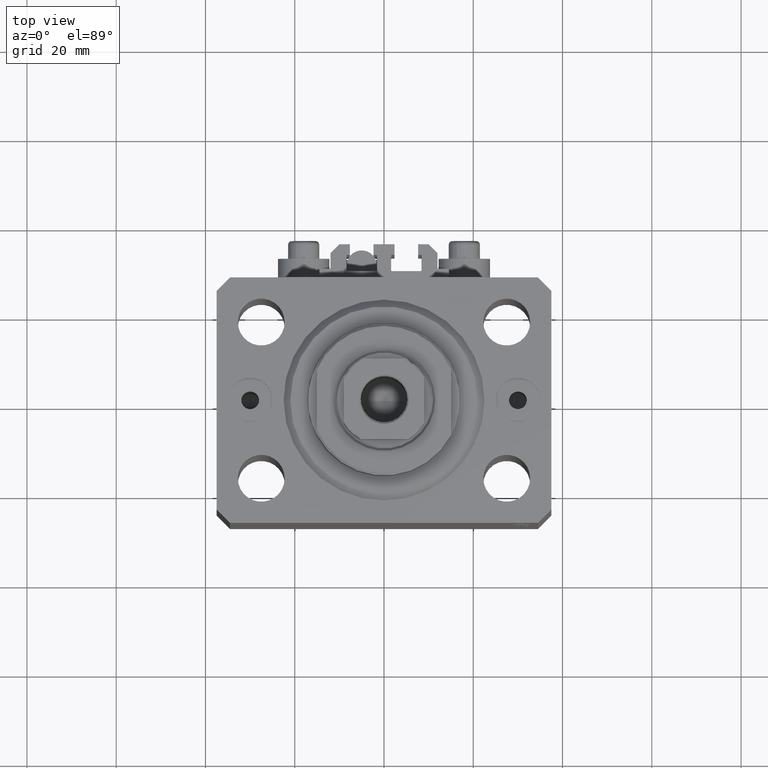
[diagram: clean part render]
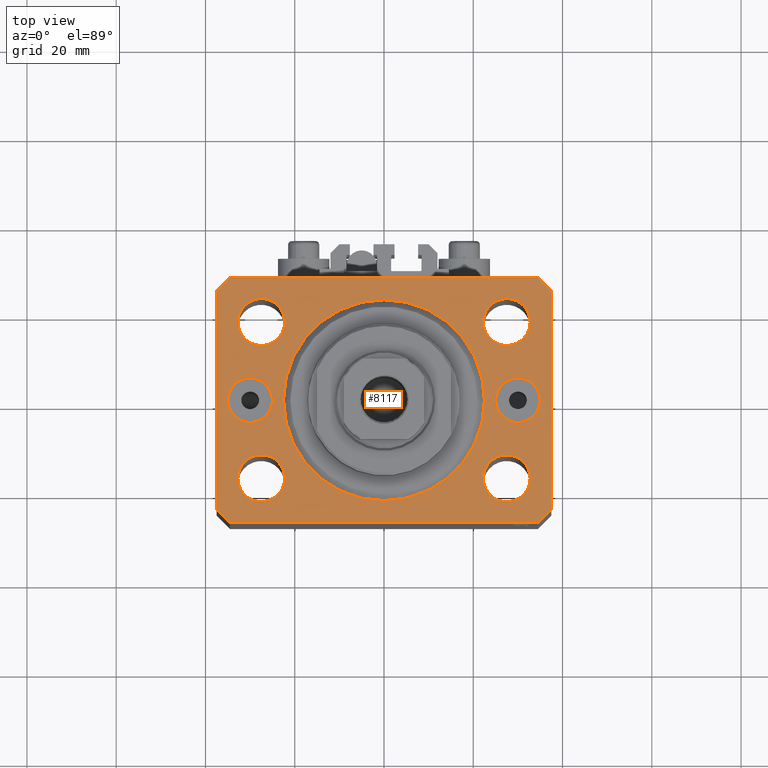
[diagram: same view with one face highlighted and labeled with its STEP entity id]
A machine part, top view. The second image highlights one B-rep face of the part: STEP entity #8117.
In plain terms, the highlighted planar face has unit normal (0, 0, 1).
Its self-contained STEP definition (entity closure, byte-faithful):
#1018 = DIRECTION ( 'NONE',  ( 0.000000000000000000, 0.000000000000000000, 1.000000000000000000 ) ) ;
#1151 = VERTEX_POINT ( 'NONE', #2017 ) ;
#1253 = CIRCLE ( 'NONE', #11327, 5.250000000000000888 ) ;
#1261 = CARTESIAN_POINT ( 'NONE',  ( -22.25000000000000000, 17.49999999999999645, 0.000000000000000000 ) ) ;
#1316 = DIRECTION ( 'NONE',  ( 0.000000000000000000, -1.000000000000000000, 0.000000000000000000 ) ) ;
#1360 = EDGE_CURVE ( 'NONE', #44232, #16365, #42494, .T. ) ;
#1390 = CARTESIAN_POINT ( 'NONE',  ( -30.00000000000000000, 0.000000000000000000, 0.000000000000000000 ) ) ;
#1497 = FACE_BOUND ( 'NONE', #9825, .T. ) ;
#1715 = VERTEX_POINT ( 'NONE', #29614 ) ;
#1829 = VERTEX_POINT ( 'NONE', #28067 ) ;
#2017 = CARTESIAN_POINT ( 'NONE',  ( -34.49999999999999289, 27.50000000000000000, 0.000000000000000000 ) ) ;
#2190 = EDGE_CURVE ( 'NONE', #31618, #15396, #40081, .T. ) ;
#2365 = EDGE_CURVE ( 'NONE', #13115, #27090, #9060, .T. ) ;
#2415 = CIRCLE ( 'NONE', #26477, 5.250000000000000888 ) ;
#2418 = LINE ( 'NONE', #41365, #34063 ) ;
#2650 = ORIENTED_EDGE ( 'NONE', *, *, #42698, .F. ) ;
#2874 = AXIS2_PLACEMENT_3D ( 'NONE', #26602, #30248, #4975 ) ;
#2918 = AXIS2_PLACEMENT_3D ( 'NONE', #8627, #45778, #23431 ) ;
#3124 = DIRECTION ( 'NONE',  ( 1.000000000000000000, 0.000000000000000000, 0.000000000000000000 ) ) ;
#3290 = CARTESIAN_POINT ( 'NONE',  ( 37.49999999999999289, -24.50000000000000000, 0.000000000000000000 ) ) ;
#3697 = DIRECTION ( 'NONE',  ( 0.000000000000000000, -0.000000000000000000, -1.000000000000000000 ) ) ;
#3773 = ORIENTED_EDGE ( 'NONE', *, *, #24108, .F. ) ;
#4400 = DIRECTION ( 'NONE',  ( 1.000000000000000000, 0.000000000000000000, 0.000000000000000000 ) ) ;
#4975 = DIRECTION ( 'NONE',  ( 1.000000000000000000, 0.000000000000000000, 0.000000000000000000 ) ) ;
#5382 = VECTOR ( 'NONE', #1316, 1000.000000000000000 ) ;
#5531 = ORIENTED_EDGE ( 'NONE', *, *, #11553, .T. ) ;
#5606 = CARTESIAN_POINT ( 'NONE',  ( 0.000000000000000000, 0.000000000000000000, 0.000000000000000000 ) ) ;
#5679 = EDGE_LOOP ( 'NONE', ( #12048, #39023 ) ) ;
#5950 = DIRECTION ( 'NONE',  ( 1.000000000000000000, 0.000000000000000000, 0.000000000000000000 ) ) ;
#6087 = CIRCLE ( 'NONE', #16172, 5.250000000000000888 ) ;
#6188 = EDGE_LOOP ( 'NONE', ( #12502, #10567 ) ) ;
#6741 = AXIS2_PLACEMENT_3D ( 'NONE', #10975, #3697, #25301 ) ;
#7135 = DIRECTION ( 'NONE',  ( 1.000000000000000000, 0.000000000000000000, 0.000000000000000000 ) ) ;
#7216 = EDGE_CURVE ( 'NONE', #1151, #16637, #2418, .T. ) ;
#8054 = DIRECTION ( 'NONE',  ( 0.000000000000000000, 0.000000000000000000, 1.000000000000000000 ) ) ;
#8076 = CARTESIAN_POINT ( 'NONE',  ( 30.00000000000000000, 0.000000000000000000, 0.000000000000000000 ) ) ;
#8117 = ADVANCED_FACE ( 'NONE', ( #34284, #46156, #34754, #45918, #1497, #31594, #8999, #45444 ), #16290, .T. ) ;
#8313 = AXIS2_PLACEMENT_3D ( 'NONE', #14277, #10881, #3124 ) ;
#8373 = DIRECTION ( 'NONE',  ( -0.7071067811865364705, 0.7071067811865584529, 0.000000000000000000 ) ) ;
#8581 = VECTOR ( 'NONE', #5950, 1000.000000000000000 ) ;
#8627 = CARTESIAN_POINT ( 'NONE',  ( 0.000000000000000000, 0.000000000000000000, 0.000000000000000000 ) ) ;
#8999 = FACE_BOUND ( 'NONE', #35820, .T. ) ;
#9060 = CIRCLE ( 'NONE', #8313, 5.250000000000000888 ) ;
#9262 = CIRCLE ( 'NONE', #21673, 5.250000000000000888 ) ;
#9783 = EDGE_CURVE ( 'NONE', #20453, #42626, #41650, .T. ) ;
#9817 = EDGE_LOOP ( 'NONE', ( #41083, #18112, #39669, #10087, #5531, #34438, #31589, #47970 ) ) ;
#9825 = EDGE_LOOP ( 'NONE', ( #22482, #15714 ) ) ;
#10023 = CARTESIAN_POINT ( 'NONE',  ( -22.24999999999999289, -17.50000000000000000, 0.000000000000000000 ) ) ;
#10087 = ORIENTED_EDGE ( 'NONE', *, *, #43009, .T. ) ;
#10567 = ORIENTED_EDGE ( 'NONE', *, *, #38109, .F. ) ;
#10881 = DIRECTION ( 'NONE',  ( 0.000000000000000000, 0.000000000000000000, 1.000000000000000000 ) ) ;
#10975 = CARTESIAN_POINT ( 'NONE',  ( 30.00000000000000000, 0.000000000000000000, 0.000000000000000000 ) ) ;
#11327 = AXIS2_PLACEMENT_3D ( 'NONE', #42390, #23930, #24179 ) ;
#11553 = EDGE_CURVE ( 'NONE', #39510, #39441, #13237, .T. ) ;
#11693 = CARTESIAN_POINT ( 'NONE',  ( 27.49999999999999289, -17.50000000000000000, 0.000000000000000000 ) ) ;
#11703 = CARTESIAN_POINT ( 'NONE',  ( -27.49999999999999289, -17.50000000000000000, 0.000000000000000000 ) ) ;
#12048 = ORIENTED_EDGE ( 'NONE', *, *, #1360, .F. ) ;
#12502 = ORIENTED_EDGE ( 'NONE', *, *, #43344, .F. ) ;
#12696 = EDGE_CURVE ( 'NONE', #47940, #30995, #2415, .T. ) ;
#12711 = DIRECTION ( 'NONE',  ( 1.000000000000000000, 0.000000000000000000, 0.000000000000000000 ) ) ;
#13115 = VERTEX_POINT ( 'NONE', #1261 ) ;
#13237 = LINE ( 'NONE', #28064, #8581 ) ;
#13371 = EDGE_CURVE ( 'NONE', #39441, #31445, #16005, .T. ) ;
#14214 = CARTESIAN_POINT ( 'NONE',  ( -24.99999999999999645, 0.000000000000000000, 0.000000000000000000 ) ) ;
#14277 = CARTESIAN_POINT ( 'NONE',  ( -27.50000000000000000, 17.49999999999999645, 0.000000000000000000 ) ) ;
#14342 = LINE ( 'NONE', #29171, #24747 ) ;
#15153 = VECTOR ( 'NONE', #30415, 1000.000000000000000 ) ;
#15246 = VERTEX_POINT ( 'NONE', #10023 ) ;
#15281 = CARTESIAN_POINT ( 'NONE',  ( 34.49999999999999289, -27.49999999999999645, 0.000000000000000000 ) ) ;
#15334 = DIRECTION ( 'NONE',  ( 0.000000000000000000, 0.000000000000000000, 1.000000000000000000 ) ) ;
#15396 = VERTEX_POINT ( 'NONE', #34773 ) ;
#15623 = EDGE_LOOP ( 'NONE', ( #37842, #3773 ) ) ;
#15714 = ORIENTED_EDGE ( 'NONE', *, *, #45592, .F. ) ;
#16005 = LINE ( 'NONE', #15281, #31903 ) ;
#16172 = AXIS2_PLACEMENT_3D ( 'NONE', #11703, #15334, #26520 ) ;
#16188 = DIRECTION ( 'NONE',  ( 1.000000000000000000, 0.000000000000000000, 0.000000000000000000 ) ) ;
#16290 = PLANE ( 'NONE',  #38752 ) ;
#16365 = VERTEX_POINT ( 'NONE', #38274 ) ;
#16533 = CARTESIAN_POINT ( 'NONE',  ( -34.99999999999999289, 6.123233995736768255E-16, 0.000000000000000000 ) ) ;
#16637 = VERTEX_POINT ( 'NONE', #23387 ) ;
#17076 = DIRECTION ( 'NONE',  ( 0.7071067811865483499, -0.7071067811865466846, 0.000000000000000000 ) ) ;
#17452 = AXIS2_PLACEMENT_3D ( 'NONE', #46883, #17986, #28681 ) ;
#17557 = DIRECTION ( 'NONE',  ( 0.000000000000000000, 0.000000000000000000, 1.000000000000000000 ) ) ;
#17589 = EDGE_LOOP ( 'NONE', ( #39734, #45827 ) ) ;
#17881 = DIRECTION ( 'NONE',  ( 0.000000000000000000, 0.000000000000000000, 1.000000000000000000 ) ) ;
#17986 = DIRECTION ( 'NONE',  ( 0.000000000000000000, 0.000000000000000000, 1.000000000000000000 ) ) ;
#18112 = ORIENTED_EDGE ( 'NONE', *, *, #7216, .T. ) ;
#18380 = CIRCLE ( 'NONE', #28469, 5.000000000000000888 ) ;
#18553 = CARTESIAN_POINT ( 'NONE',  ( -32.75000000000000000, 17.49999999999999645, 0.000000000000000000 ) ) ;
#19037 = LINE ( 'NONE', #41162, #5382 ) ;
#19229 = DIRECTION ( 'NONE',  ( 0.000000000000000000, -0.000000000000000000, -1.000000000000000000 ) ) ;
#19848 = CIRCLE ( 'NONE', #35358, 5.250000000000000888 ) ;
#20453 = VERTEX_POINT ( 'NONE', #33408 ) ;
#20521 = VERTEX_POINT ( 'NONE', #14214 ) ;
#21167 = CARTESIAN_POINT ( 'NONE',  ( 34.49999999999999289, -27.49999999999999645, 0.000000000000000000 ) ) ;
#21433 = CARTESIAN_POINT ( 'NONE',  ( 34.99999999999999289, 0.000000000000000000, 0.000000000000000000 ) ) ;
#21673 = AXIS2_PLACEMENT_3D ( 'NONE', #40398, #17557, #7135 ) ;
#22148 = CARTESIAN_POINT ( 'NONE',  ( 34.50000000000056843, 27.50000000000000000, 0.000000000000000000 ) ) ;
#22249 = ORIENTED_EDGE ( 'NONE', *, *, #12696, .F. ) ;
#22482 = ORIENTED_EDGE ( 'NONE', *, *, #33590, .F. ) ;
#23387 = CARTESIAN_POINT ( 'NONE',  ( -37.49999999999999289, 24.50000000000000000, 0.000000000000000000 ) ) ;
#23431 = DIRECTION ( 'NONE',  ( 1.000000000000000000, 0.000000000000000000, 0.000000000000000000 ) ) ;
#23930 = DIRECTION ( 'NONE',  ( 0.000000000000000000, 0.000000000000000000, 1.000000000000000000 ) ) ;
#24108 = EDGE_CURVE ( 'NONE', #27090, #13115, #19848, .T. ) ;
#24179 = DIRECTION ( 'NONE',  ( 1.000000000000000000, 0.000000000000000000, 0.000000000000000000 ) ) ;
#24263 = EDGE_CURVE ( 'NONE', #16365, #44232, #1253, .T. ) ;
#24391 = CARTESIAN_POINT ( 'NONE',  ( 0.000000000000000000, 0.000000000000000000, 0.000000000000000000 ) ) ;
#24747 = VECTOR ( 'NONE', #28929, 1000.000000000000000 ) ;
#25301 = DIRECTION ( 'NONE',  ( 1.000000000000000000, 0.000000000000000000, 0.000000000000000000 ) ) ;
#26039 = CARTESIAN_POINT ( 'NONE',  ( 32.75000000000000000, 17.49999999999999289, 0.000000000000000000 ) ) ;
#26477 = AXIS2_PLACEMENT_3D ( 'NONE', #31174, #45977, #12711 ) ;
#26520 = DIRECTION ( 'NONE',  ( 1.000000000000000000, 0.000000000000000000, 0.000000000000000000 ) ) ;
#26602 = CARTESIAN_POINT ( 'NONE',  ( -30.00000000000000000, 0.000000000000000000, 0.000000000000000000 ) ) ;
#26783 = AXIS2_PLACEMENT_3D ( 'NONE', #24391, #27566, #28272 ) ;
#27090 = VERTEX_POINT ( 'NONE', #18553 ) ;
#27398 = VERTEX_POINT ( 'NONE', #28957 ) ;
#27566 = DIRECTION ( 'NONE',  ( 0.000000000000000000, 0.000000000000000000, 1.000000000000000000 ) ) ;
#27816 = CARTESIAN_POINT ( 'NONE',  ( 32.74999999999999289, -17.50000000000000000, 0.000000000000000000 ) ) ;
#28064 = CARTESIAN_POINT ( 'NONE',  ( -34.49999999999998579, -27.49999999999999645, 0.000000000000000000 ) ) ;
#28067 = CARTESIAN_POINT ( 'NONE',  ( 22.50000000000000355, 0.000000000000000000, 0.000000000000000000 ) ) ;
#28179 = EDGE_CURVE ( 'NONE', #15396, #31618, #41410, .T. ) ;
#28272 = DIRECTION ( 'NONE',  ( 1.000000000000000000, 0.000000000000000000, 0.000000000000000000 ) ) ;
#28469 = AXIS2_PLACEMENT_3D ( 'NONE', #1390, #46283, #16188 ) ;
#28681 = DIRECTION ( 'NONE',  ( 1.000000000000000000, 0.000000000000000000, 0.000000000000000000 ) ) ;
#28724 = LINE ( 'NONE', #43058, #33929 ) ;
#28929 = DIRECTION ( 'NONE',  ( 1.076236605503979380E-14, 1.000000000000000000, 0.000000000000000000 ) ) ;
#28957 = CARTESIAN_POINT ( 'NONE',  ( -37.49999999999999289, -24.50000000000000000, 0.000000000000000000 ) ) ;
#29067 = DIRECTION ( 'NONE',  ( 1.000000000000000000, 0.000000000000000000, 0.000000000000000000 ) ) ;
#29171 = CARTESIAN_POINT ( 'NONE',  ( 37.49999999999999289, -24.50000000000000000, 0.000000000000000000 ) ) ;
#29614 = CARTESIAN_POINT ( 'NONE',  ( -32.74999999999999289, -17.50000000000000000, 0.000000000000000000 ) ) ;
#30182 = LINE ( 'NONE', #22148, #15153 ) ;
#30248 = DIRECTION ( 'NONE',  ( 0.000000000000000000, 0.000000000000000000, 1.000000000000000000 ) ) ;
#30415 = DIRECTION ( 'NONE',  ( -1.000000000000000000, 0.000000000000000000, 0.000000000000000000 ) ) ;
#30595 = DIRECTION ( 'NONE',  ( 0.7071067811865474617, 0.7071067811865474617, 0.000000000000000000 ) ) ;
#30995 = VERTEX_POINT ( 'NONE', #26039 ) ;
#31026 = EDGE_CURVE ( 'NONE', #42626, #1151, #30182, .T. ) ;
#31174 = CARTESIAN_POINT ( 'NONE',  ( 27.50000000000000000, 17.49999999999999289, 0.000000000000000000 ) ) ;
#31271 = ORIENTED_EDGE ( 'NONE', *, *, #35136, .F. ) ;
#31445 = VERTEX_POINT ( 'NONE', #3290 ) ;
#31484 = CARTESIAN_POINT ( 'NONE',  ( 34.50000000000056843, 27.50000000000000000, 0.000000000000000000 ) ) ;
#31561 = DIRECTION ( 'NONE',  ( -0.7071067811865471286, -0.7071067811865479058, 0.000000000000000000 ) ) ;
#31589 = ORIENTED_EDGE ( 'NONE', *, *, #36496, .T. ) ;
#31594 = FACE_BOUND ( 'NONE', #6188, .T. ) ;
#31618 = VERTEX_POINT ( 'NONE', #21433 ) ;
#31903 = VECTOR ( 'NONE', #30595, 1000.000000000000114 ) ;
#33408 = CARTESIAN_POINT ( 'NONE',  ( 37.50000000000051870, 24.49999999999995381, 0.000000000000000000 ) ) ;
#33590 = EDGE_CURVE ( 'NONE', #15246, #1715, #46174, .T. ) ;
#33929 = VECTOR ( 'NONE', #17076, 1000.000000000000000 ) ;
#34063 = VECTOR ( 'NONE', #31561, 1000.000000000000000 ) ;
#34284 = FACE_OUTER_BOUND ( 'NONE', #9817, .T. ) ;
#34438 = ORIENTED_EDGE ( 'NONE', *, *, #13371, .T. ) ;
#34527 = DIRECTION ( 'NONE',  ( 1.000000000000000000, 0.000000000000000000, 0.000000000000000000 ) ) ;
#34593 = CARTESIAN_POINT ( 'NONE',  ( 37.50000000000051870, 24.49999999999995381, 0.000000000000000000 ) ) ;
#34754 = FACE_BOUND ( 'NONE', #37533, .T. ) ;
#34773 = CARTESIAN_POINT ( 'NONE',  ( 25.00000000000000000, 6.123233995736762338E-16, 0.000000000000000000 ) ) ;
#35136 = EDGE_CURVE ( 'NONE', #20521, #40517, #40102, .T. ) ;
#35358 = AXIS2_PLACEMENT_3D ( 'NONE', #39985, #17881, #29067 ) ;
#35478 = CIRCLE ( 'NONE', #2918, 22.50000000000000355 ) ;
#35820 = EDGE_LOOP ( 'NONE', ( #31271, #2650 ) ) ;
#36094 = CIRCLE ( 'NONE', #26783, 22.50000000000000355 ) ;
#36097 = EDGE_CURVE ( 'NONE', #30995, #47940, #9262, .T. ) ;
#36496 = EDGE_CURVE ( 'NONE', #31445, #20453, #14342, .T. ) ;
#36749 = AXIS2_PLACEMENT_3D ( 'NONE', #8076, #19229, #34527 ) ;
#37142 = CARTESIAN_POINT ( 'NONE',  ( 22.25000000000000000, 17.49999999999999289, 0.000000000000000000 ) ) ;
#37219 = VECTOR ( 'NONE', #8373, 1000.000000000000114 ) ;
#37533 = EDGE_LOOP ( 'NONE', ( #47726, #22249 ) ) ;
#37842 = ORIENTED_EDGE ( 'NONE', *, *, #2365, .F. ) ;
#38109 = EDGE_CURVE ( 'NONE', #42781, #1829, #36094, .T. ) ;
#38166 = DIRECTION ( 'NONE',  ( 1.000000000000000000, 0.000000000000000000, -0.000000000000000000 ) ) ;
#38274 = CARTESIAN_POINT ( 'NONE',  ( 22.24999999999999289, -17.50000000000000000, 0.000000000000000000 ) ) ;
#38752 = AXIS2_PLACEMENT_3D ( 'NONE', #5606, #1018, #38166 ) ;
#39023 = ORIENTED_EDGE ( 'NONE', *, *, #24263, .F. ) ;
#39441 = VERTEX_POINT ( 'NONE', #21167 ) ;
#39510 = VERTEX_POINT ( 'NONE', #44227 ) ;
#39669 = ORIENTED_EDGE ( 'NONE', *, *, #47722, .T. ) ;
#39734 = ORIENTED_EDGE ( 'NONE', *, *, #2190, .T. ) ;
#39985 = CARTESIAN_POINT ( 'NONE',  ( -27.50000000000000000, 17.49999999999999645, 0.000000000000000000 ) ) ;
#40081 = CIRCLE ( 'NONE', #6741, 4.999999999999997335 ) ;
#40102 = CIRCLE ( 'NONE', #2874, 5.000000000000000888 ) ;
#40398 = CARTESIAN_POINT ( 'NONE',  ( 27.50000000000000000, 17.49999999999999289, 0.000000000000000000 ) ) ;
#40517 = VERTEX_POINT ( 'NONE', #16533 ) ;
#41083 = ORIENTED_EDGE ( 'NONE', *, *, #31026, .T. ) ;
#41162 = CARTESIAN_POINT ( 'NONE',  ( -37.49999999999999289, 24.50000000000000000, 0.000000000000000000 ) ) ;
#41365 = CARTESIAN_POINT ( 'NONE',  ( -34.49999999999999289, 27.50000000000000000, 0.000000000000000000 ) ) ;
#41410 = CIRCLE ( 'NONE', #36749, 4.999999999999997335 ) ;
#41650 = LINE ( 'NONE', #34593, #37219 ) ;
#42390 = CARTESIAN_POINT ( 'NONE',  ( 27.49999999999999289, -17.50000000000000000, 0.000000000000000000 ) ) ;
#42494 = CIRCLE ( 'NONE', #43242, 5.250000000000000888 ) ;
#42626 = VERTEX_POINT ( 'NONE', #31484 ) ;
#42698 = EDGE_CURVE ( 'NONE', #40517, #20521, #18380, .T. ) ;
#42781 = VERTEX_POINT ( 'NONE', #42888 ) ;
#42888 = CARTESIAN_POINT ( 'NONE',  ( -22.50000000000000355, 2.755455298081544383E-15, 0.000000000000000000 ) ) ;
#43009 = EDGE_CURVE ( 'NONE', #27398, #39510, #28724, .T. ) ;
#43058 = CARTESIAN_POINT ( 'NONE',  ( -37.49999999999999289, -24.50000000000000000, 0.000000000000000000 ) ) ;
#43242 = AXIS2_PLACEMENT_3D ( 'NONE', #11693, #8054, #4400 ) ;
#43344 = EDGE_CURVE ( 'NONE', #1829, #42781, #35478, .T. ) ;
#44227 = CARTESIAN_POINT ( 'NONE',  ( -34.49999999999998579, -27.49999999999999645, 0.000000000000000000 ) ) ;
#44232 = VERTEX_POINT ( 'NONE', #27816 ) ;
#45444 = FACE_BOUND ( 'NONE', #17589, .T. ) ;
#45592 = EDGE_CURVE ( 'NONE', #1715, #15246, #6087, .T. ) ;
#45778 = DIRECTION ( 'NONE',  ( 0.000000000000000000, 0.000000000000000000, 1.000000000000000000 ) ) ;
#45827 = ORIENTED_EDGE ( 'NONE', *, *, #28179, .T. ) ;
#45918 = FACE_BOUND ( 'NONE', #5679, .T. ) ;
#45977 = DIRECTION ( 'NONE',  ( 0.000000000000000000, 0.000000000000000000, 1.000000000000000000 ) ) ;
#46156 = FACE_BOUND ( 'NONE', #15623, .T. ) ;
#46174 = CIRCLE ( 'NONE', #17452, 5.250000000000000888 ) ;
#46283 = DIRECTION ( 'NONE',  ( 0.000000000000000000, 0.000000000000000000, 1.000000000000000000 ) ) ;
#46883 = CARTESIAN_POINT ( 'NONE',  ( -27.49999999999999289, -17.50000000000000000, 0.000000000000000000 ) ) ;
#47722 = EDGE_CURVE ( 'NONE', #16637, #27398, #19037, .T. ) ;
#47726 = ORIENTED_EDGE ( 'NONE', *, *, #36097, .F. ) ;
#47940 = VERTEX_POINT ( 'NONE', #37142 ) ;
#47970 = ORIENTED_EDGE ( 'NONE', *, *, #9783, .T. ) ;